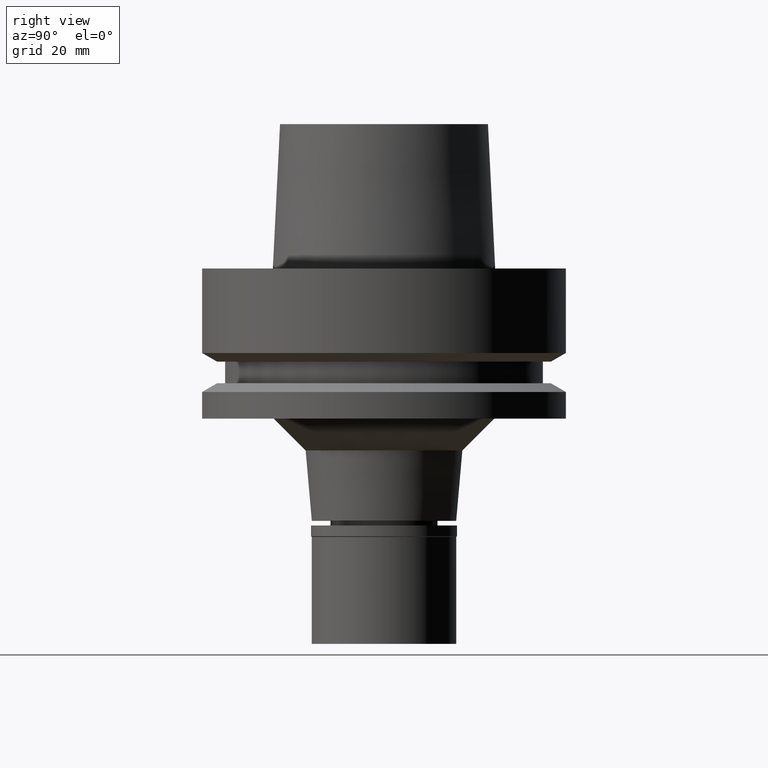
[diagram: clean part render]
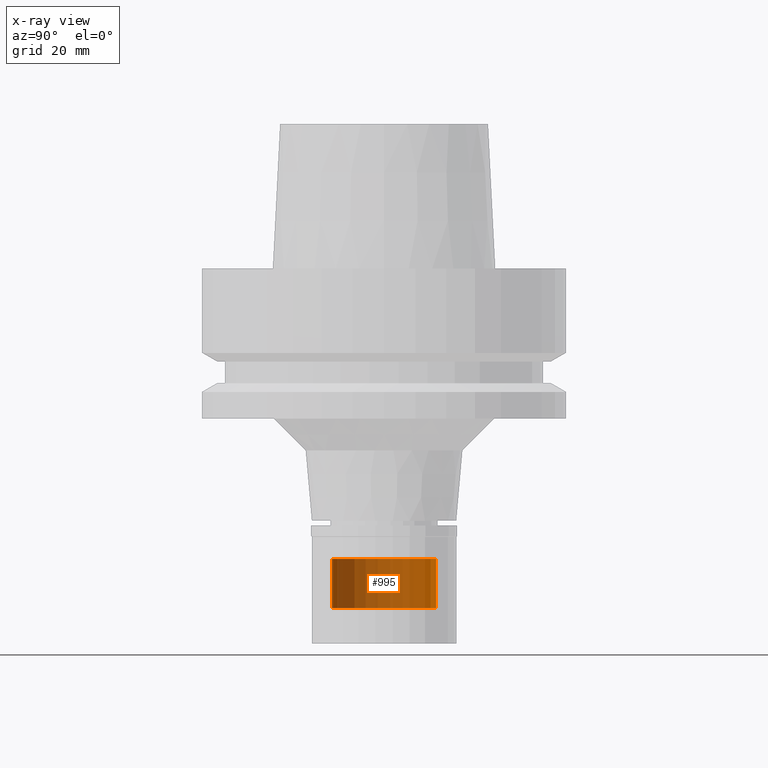
[diagram: x-ray — body ghosted, one internal face saturated and labeled with its STEP entity id]
A machine part, right view, then the same camera in x-ray: the body is ghosted and one INTERNAL B-rep face — a face not visible from any outside direction — is saturated and labeled: STEP entity #995.
In plain terms, the highlighted cylindrical surface (partial cylindrical patch) has radius 9 mm, axis along (0, 0, 1).
Its self-contained STEP definition (entity closure, byte-faithful):
#41 = VERTEX_POINT ( 'NONE', #1332 ) ;
#49 = AXIS2_PLACEMENT_3D ( 'NONE', #2740, #2492, #988 ) ;
#112 = DIRECTION ( 'NONE',  ( 0.0000000000000000000, 0.0000000000000000000, -1.000000000000000000 ) ) ;
#119 = FACE_OUTER_BOUND ( 'NONE', #2278, .T. ) ;
#261 = LINE ( 'NONE', #691, #414 ) ;
#352 = EDGE_CURVE ( 'NONE', #2051, #41, #2579, .T. ) ;
#414 = VECTOR ( 'NONE', #112, 1000.000000000000000 ) ;
#664 = CARTESIAN_POINT ( 'NONE',  ( 0.0000000000000000000, -9.000000000000000000, -50.29999999999999716 ) ) ;
#691 = CARTESIAN_POINT ( 'NONE',  ( 0.0000000000000000000, 9.000000000000000000, -50.29999999999999716 ) ) ;
#743 = ORIENTED_EDGE ( 'NONE', *, *, #352, .T. ) ;
#752 = CARTESIAN_POINT ( 'NONE',  ( 0.0000000000000000000, -9.000000000000000000, -50.29999999999999716 ) ) ;
#798 = ORIENTED_EDGE ( 'NONE', *, *, #1735, .T. ) ;
#825 = CARTESIAN_POINT ( 'NONE',  ( 0.0000000000000000000, 0.0000000000000000000, -58.79999999999999716 ) ) ;
#872 = CIRCLE ( 'NONE', #2252, 9.000000000000000000 ) ;
#963 = AXIS2_PLACEMENT_3D ( 'NONE', #825, #1422, #1462 ) ;
#988 = DIRECTION ( 'NONE',  ( 0.0000000000000000000, 1.000000000000000000, 0.0000000000000000000 ) ) ;
#995 = ADVANCED_FACE ( 'NONE', ( #119 ), #1620, .T. ) ;
#1180 = VERTEX_POINT ( 'NONE', #664 ) ;
#1185 = DIRECTION ( 'NONE',  ( 0.0000000000000000000, 0.0000000000000000000, -1.000000000000000000 ) ) ;
#1241 = VECTOR ( 'NONE', #1185, 1000.000000000000000 ) ;
#1279 = DIRECTION ( 'NONE',  ( 0.0000000000000000000, 0.0000000000000000000, -1.000000000000000000 ) ) ;
#1298 = EDGE_CURVE ( 'NONE', #1378, #2051, #261, .T. ) ;
#1332 = CARTESIAN_POINT ( 'NONE',  ( 0.0000000000000000000, -9.000000000000000000, -58.79999999999999716 ) ) ;
#1378 = VERTEX_POINT ( 'NONE', #2396 ) ;
#1422 = DIRECTION ( 'NONE',  ( 0.0000000000000000000, 0.0000000000000000000, 1.000000000000000000 ) ) ;
#1462 = DIRECTION ( 'NONE',  ( 0.0000000000000000000, 1.000000000000000000, 0.0000000000000000000 ) ) ;
#1620 = CYLINDRICAL_SURFACE ( 'NONE', #49, 9.000000000000000000 ) ;
#1735 = EDGE_CURVE ( 'NONE', #1180, #1378, #872, .T. ) ;
#1761 = EDGE_CURVE ( 'NONE', #1180, #41, #2232, .T. ) ;
#1831 = ORIENTED_EDGE ( 'NONE', *, *, #1761, .F. ) ;
#1852 = ORIENTED_EDGE ( 'NONE', *, *, #1298, .T. ) ;
#1951 = CARTESIAN_POINT ( 'NONE',  ( 0.0000000000000000000, 9.000000000000000000, -58.79999999999999716 ) ) ;
#2051 = VERTEX_POINT ( 'NONE', #1951 ) ;
#2096 = CARTESIAN_POINT ( 'NONE',  ( 0.0000000000000000000, 0.0000000000000000000, -50.29999999999999716 ) ) ;
#2232 = LINE ( 'NONE', #752, #1241 ) ;
#2252 = AXIS2_PLACEMENT_3D ( 'NONE', #2096, #1279, #2317 ) ;
#2278 = EDGE_LOOP ( 'NONE', ( #743, #1831, #798, #1852 ) ) ;
#2317 = DIRECTION ( 'NONE',  ( 0.0000000000000000000, -1.000000000000000000, 0.0000000000000000000 ) ) ;
#2396 = CARTESIAN_POINT ( 'NONE',  ( 0.0000000000000000000, 9.000000000000000000, -50.29999999999999716 ) ) ;
#2492 = DIRECTION ( 'NONE',  ( 0.0000000000000000000, 0.0000000000000000000, 1.000000000000000000 ) ) ;
#2579 = CIRCLE ( 'NONE', #963, 9.000000000000000000 ) ;
#2740 = CARTESIAN_POINT ( 'NONE',  ( 0.0000000000000000000, 0.0000000000000000000, -62.99000000000000199 ) ) ;